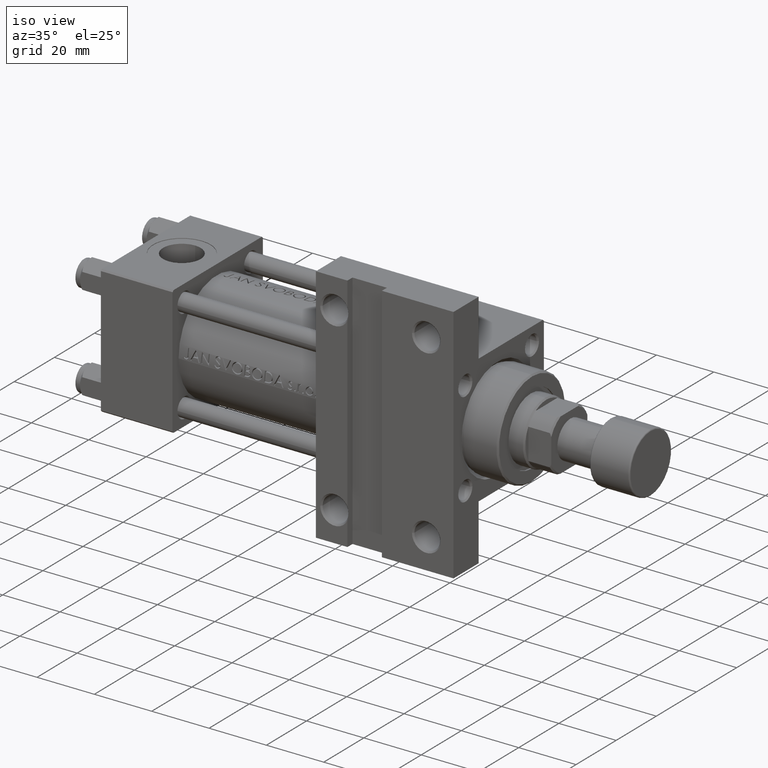
[diagram: clean part render]
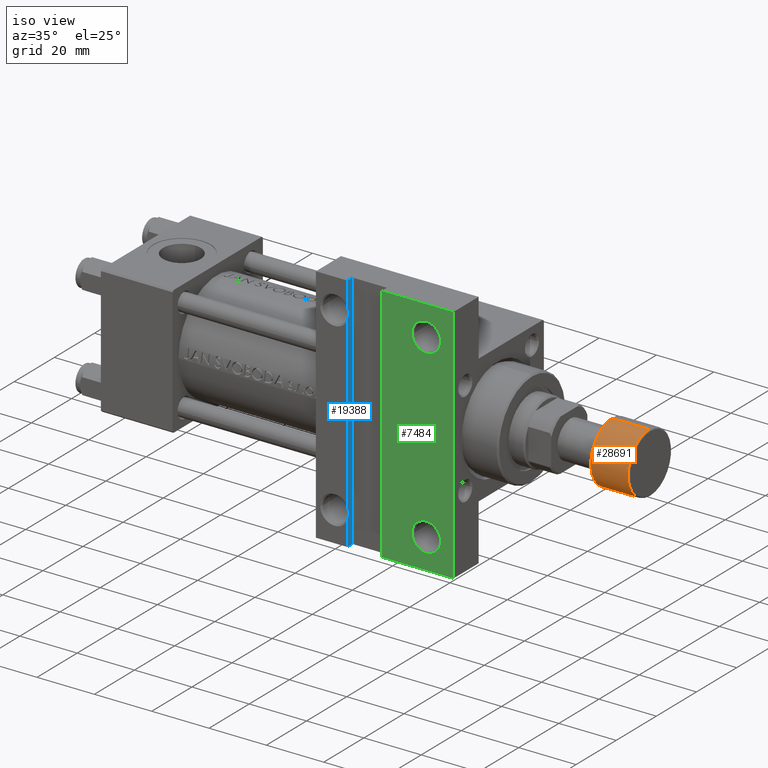
[diagram: same view with three faces highlighted in distinct colors, each labeled with its STEP entity id]
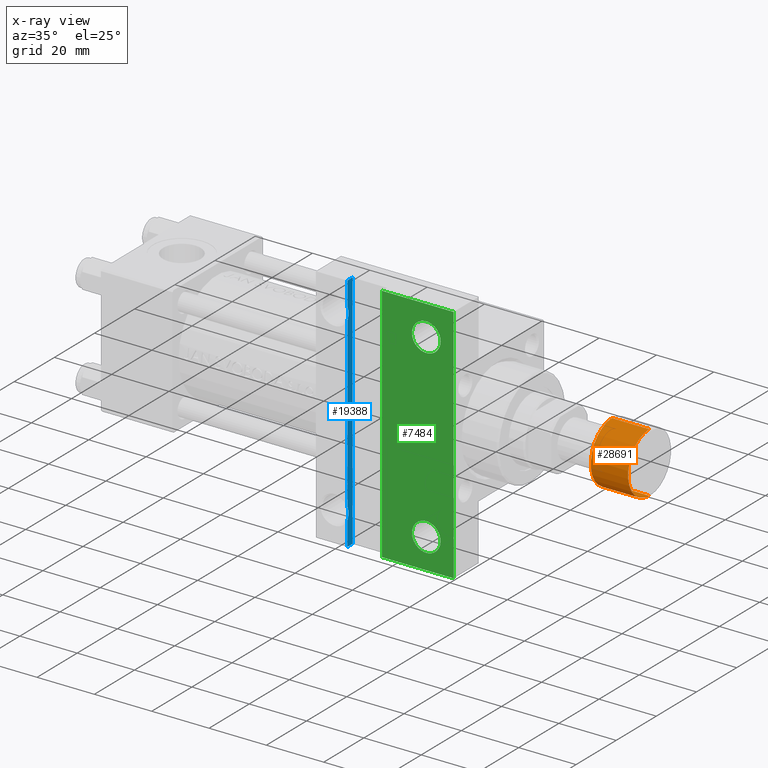
[diagram: x-ray of the same camera — body ghosted, the three highlighted faces saturated]
A machine part, iso view with three faces highlighted in distinct colors.
The next image is the same camera in x-ray (body ghosted, the three faces saturated) — at least one of them is partly hidden behind the body in this view.
Their STEP definitions:

[orange] entity #28691 — the highlighted cylindrical surface (partial cylindrical patch) has radius 10.5 mm, axis along (1, 0, 0).
#836 = CARTESIAN_POINT ( 'NONE',  ( 10.50000000000000000, 0.000000000000000000, -14.00000000000000000 ) ) ;
#5747 = VERTEX_POINT ( 'NONE', #27221 ) ;
#6845 = DIRECTION ( 'NONE',  ( 1.000000000000000000, 0.000000000000000000, 0.000000000000000000 ) ) ;
#7561 = CARTESIAN_POINT ( 'NONE',  ( -10.50000000000000000, 1.285879139104720831E-15, -14.00000000000000000 ) ) ;
#8068 = DIRECTION ( 'NONE',  ( -0.000000000000000000, -0.000000000000000000, -1.000000000000000000 ) ) ;
#8384 = LINE ( 'NONE', #836, #32066 ) ;
#8585 = AXIS2_PLACEMENT_3D ( 'NONE', #22935, #8068, #35275 ) ;
#10152 = AXIS2_PLACEMENT_3D ( 'NONE', #44390, #33548, #6845 ) ;
#14089 = VERTEX_POINT ( 'NONE', #34233 ) ;
#21527 = CARTESIAN_POINT ( 'NONE',  ( 0.000000000000000000, 0.000000000000000000, -13.50000000000000000 ) ) ;
#21781 = CIRCLE ( 'NONE', #45123, 10.50000000000000000 ) ;
#21913 = ORIENTED_EDGE ( 'NONE', *, *, #24344, .F. ) ;
#22935 = CARTESIAN_POINT ( 'NONE',  ( 0.000000000000000000, 0.000000000000000000, -0.5000000000000004441 ) ) ;
#24344 = EDGE_CURVE ( 'NONE', #5747, #47131, #34007, .T. ) ;
#25213 = ORIENTED_EDGE ( 'NONE', *, *, #32974, .T. ) ;
#25240 = CYLINDRICAL_SURFACE ( 'NONE', #10152, 10.50000000000000000 ) ;
#26510 = CARTESIAN_POINT ( 'NONE',  ( -10.50000000000000000, 1.285879139104720831E-15, -0.5000000000000004441 ) ) ;
#27221 = CARTESIAN_POINT ( 'NONE',  ( -10.50000000000000000, 1.285879139104720831E-15, -13.50000000000000000 ) ) ;
#28691 = ADVANCED_FACE ( 'NONE', ( #29029 ), #25240, .T. ) ;
#29029 = FACE_OUTER_BOUND ( 'NONE', #44233, .T. ) ;
#30095 = DIRECTION ( 'NONE',  ( 1.000000000000000000, 0.000000000000000000, 0.000000000000000000 ) ) ;
#30436 = CARTESIAN_POINT ( 'NONE',  ( 10.50000000000000000, 0.000000000000000000, -0.5000000000000004441 ) ) ;
#31750 = VECTOR ( 'NONE', #46093, 1000.000000000000000 ) ;
#32066 = VECTOR ( 'NONE', #46663, 1000.000000000000000 ) ;
#32974 = EDGE_CURVE ( 'NONE', #41137, #47131, #35936, .T. ) ;
#33548 = DIRECTION ( 'NONE',  ( 0.000000000000000000, 0.000000000000000000, 1.000000000000000000 ) ) ;
#34007 = LINE ( 'NONE', #7561, #31750 ) ;
#34233 = CARTESIAN_POINT ( 'NONE',  ( 10.50000000000000000, 0.000000000000000000, -13.50000000000000000 ) ) ;
#35275 = DIRECTION ( 'NONE',  ( 1.000000000000000000, 0.000000000000000000, 0.000000000000000000 ) ) ;
#35936 = CIRCLE ( 'NONE', #8585, 10.50000000000000000 ) ;
#37095 = EDGE_CURVE ( 'NONE', #14089, #41137, #8384, .T. ) ;
#40711 = EDGE_CURVE ( 'NONE', #5747, #14089, #21781, .T. ) ;
#41137 = VERTEX_POINT ( 'NONE', #30436 ) ;
#41177 = DIRECTION ( 'NONE',  ( 0.000000000000000000, 0.000000000000000000, 1.000000000000000000 ) ) ;
#44233 = EDGE_LOOP ( 'NONE', ( #21913, #48595, #44541, #25213 ) ) ;
#44390 = CARTESIAN_POINT ( 'NONE',  ( 0.000000000000000000, 0.000000000000000000, -14.00000000000000000 ) ) ;
#44541 = ORIENTED_EDGE ( 'NONE', *, *, #37095, .T. ) ;
#45123 = AXIS2_PLACEMENT_3D ( 'NONE', #21527, #41177, #30095 ) ;
#46093 = DIRECTION ( 'NONE',  ( 0.000000000000000000, 0.000000000000000000, 1.000000000000000000 ) ) ;
#46663 = DIRECTION ( 'NONE',  ( 0.000000000000000000, 0.000000000000000000, 1.000000000000000000 ) ) ;
#47131 = VERTEX_POINT ( 'NONE', #26510 ) ;
#48595 = ORIENTED_EDGE ( 'NONE', *, *, #40711, .T. ) ;

[blue] entity #19388 — the highlighted planar face has unit normal (-1, 0, 0).
#107 = VECTOR ( 'NONE', #47758, 1000.000000000000000 ) ;
#718 = CARTESIAN_POINT ( 'NONE',  ( 86.00000000000000000, 30.56746348183019890, -22.09273279370941623 ) ) ;
#920 = VERTEX_POINT ( 'NONE', #43365 ) ;
#2414 = DIRECTION ( 'NONE',  ( -1.000000000000000000, 0.000000000000000000, 0.000000000000000000 ) ) ;
#2891 = CARTESIAN_POINT ( 'NONE',  ( 86.00000000000000000, -31.50000000000000000, -22.00050000000004147 ) ) ;
#3299 = CARTESIAN_POINT ( 'NONE',  ( 86.00000000000000000, -42.00000000000001421, -22.50000000000000000 ) ) ;
#3533 = VECTOR ( 'NONE', #10379, 1000.000000000000000 ) ;
#3879 = VERTEX_POINT ( 'NONE', #7255 ) ;
#4743 = CARTESIAN_POINT ( 'NONE',  ( 86.00000000000000000, 30.02311897170876520, -22.22353803365223968 ) ) ;
#5211 = CARTESIAN_POINT ( 'NONE',  ( 86.00000000000000000, 33.67830214846328118, -22.50000000000000000 ) ) ;
#5234 = B_SPLINE_CURVE_WITH_KNOTS ( 'NONE', 3,
 ( #35218, #19369, #4743, #718, #20096, #31444, #31695, #27155 ),
 .UNSPECIFIED., .F., .F.,
 ( 4, 2, 2, 4 ),
 ( 0.01579153760550547000, 0.01691587669904155364, 0.01747804624580959892, 0.01804021579257764768 ),
 .UNSPECIFIED. ) ;
#5627 = EDGE_CURVE ( 'NONE', #25156, #46028, #21697, .T. ) ;
#5954 = CARTESIAN_POINT ( 'NONE',  ( 86.00000000000000000, 31.87772890306884221, -22.00050000000002726 ) ) ;
#6215 = LINE ( 'NONE', #45493, #17231 ) ;
#6628 = EDGE_CURVE ( 'NONE', #11903, #10786, #28779, .T. ) ;
#6702 = VECTOR ( 'NONE', #30758, 1000.000000000000000 ) ;
#7255 = CARTESIAN_POINT ( 'NONE',  ( 86.00000000000000000, 31.50000000000000000, -22.00050000000003791 ) ) ;
#7848 = EDGE_CURVE ( 'NONE', #920, #14769, #6215, .T. ) ;
#7872 = ORIENTED_EDGE ( 'NONE', *, *, #42980, .T. ) ;
#8399 = B_SPLINE_CURVE_WITH_KNOTS ( 'NONE', 3,
 ( #9231, #5954, #13523, #28887, #44253, #5211 ),
 .UNSPECIFIED., .F., .F.,
 ( 4, 2, 4 ),
 ( 0.01804021579257764768, 0.01916729651592626732, 0.02029437723927488696 ),
 .UNSPECIFIED. ) ;
#8423 = ORIENTED_EDGE ( 'NONE', *, *, #22895, .T. ) ;
#8799 = VECTOR ( 'NONE', #18367, 1000.000000000000000 ) ;
#8969 = VERTEX_POINT ( 'NONE', #35657 ) ;
#9231 = CARTESIAN_POINT ( 'NONE',  ( 86.00000000000000000, 31.50000000000000000, -22.00050000000003791 ) ) ;
#9574 = CARTESIAN_POINT ( 'NONE',  ( 86.00000000000000000, -42.00000000000001421, -22.50000000000000000 ) ) ;
#9724 = FACE_OUTER_BOUND ( 'NONE', #49769, .T. ) ;
#9860 = CARTESIAN_POINT ( 'NONE',  ( 86.00000000000000000, -31.87770459630471365, -22.01256252508628819 ) ) ;
#9893 = DIRECTION ( 'NONE',  ( -0.000000000000000000, -0.000000000000000000, -1.000000000000000000 ) ) ;
#9904 = EDGE_CURVE ( 'NONE', #22534, #920, #44642, .T. ) ;
#10379 = DIRECTION ( 'NONE',  ( 0.000000000000000000, 1.000000000000000000, 0.000000000000000000 ) ) ;
#10575 = CARTESIAN_POINT ( 'NONE',  ( 86.00000000000000000, -31.12227109693115068, -22.00050000000003436 ) ) ;
#10786 = VERTEX_POINT ( 'NONE', #43092 ) ;
#11576 = CARTESIAN_POINT ( 'NONE',  ( 86.00000000000000000, -29.66403030664333329, -22.35084437994841622 ) ) ;
#11903 = VERTEX_POINT ( 'NONE', #9574 ) ;
#12135 = ORIENTED_EDGE ( 'NONE', *, *, #7848, .T. ) ;
#12345 = VERTEX_POINT ( 'NONE', #32324 ) ;
#13523 = CARTESIAN_POINT ( 'NONE',  ( 86.00000000000000000, 32.24813495350922921, -22.04852933435978812 ) ) ;
#14675 = LINE ( 'NONE', #37091, #42929 ) ;
#14769 = VERTEX_POINT ( 'NONE', #37387 ) ;
#14855 = CARTESIAN_POINT ( 'NONE',  ( 85.99999999999998579, -30.02307536041444180, -22.22344095967225641 ) ) ;
#15822 = ORIENTED_EDGE ( 'NONE', *, *, #6628, .T. ) ;
#16686 = CARTESIAN_POINT ( 'NONE',  ( 86.00000000000000000, -31.68840503775852824, -22.00050000000002726 ) ) ;
#16883 = EDGE_CURVE ( 'NONE', #3879, #25156, #8399, .T. ) ;
#16930 = CARTESIAN_POINT ( 'NONE',  ( 85.99999999999998579, -32.97688102829120282, -22.22353803365224323 ) ) ;
#17231 = VECTOR ( 'NONE', #30392, 1000.000000000000000 ) ;
#17904 = EDGE_CURVE ( 'NONE', #8969, #46028, #21818, .T. ) ;
#18367 = DIRECTION ( 'NONE',  ( 0.000000000000000000, 1.000000000000000000, 0.000000000000000000 ) ) ;
#19369 = CARTESIAN_POINT ( 'NONE',  ( 86.00000000000000000, 29.66582197534681242, -22.35006374272757057 ) ) ;
#19388 = ADVANCED_FACE ( 'NONE', ( #9724 ), #29380, .F. ) ;
#20096 = CARTESIAN_POINT ( 'NONE',  ( 86.00000000000000000, 30.75089400855858202, -22.05870219545291633 ) ) ;
#20459 = CARTESIAN_POINT ( 'NONE',  ( 86.00000000000000000, -32.43253651816978333, -22.09273279370942333 ) ) ;
#21575 = CARTESIAN_POINT ( 'NONE',  ( 86.00000000000000000, 42.00000000000000711, -20.00000000000000000 ) ) ;
#21697 = LINE ( 'NONE', #3299, #6702 ) ;
#21818 = LINE ( 'NONE', #21575, #107 ) ;
#22534 = VERTEX_POINT ( 'NONE', #2891 ) ;
#22895 = EDGE_CURVE ( 'NONE', #12345, #11903, #14675, .T. ) ;
#23806 = ORIENTED_EDGE ( 'NONE', *, *, #9904, .T. ) ;
#25156 = VERTEX_POINT ( 'NONE', #36900 ) ;
#27155 = CARTESIAN_POINT ( 'NONE',  ( 86.00000000000000000, 31.50000000000000000, -22.00050000000003791 ) ) ;
#28779 = LINE ( 'NONE', #29276, #3533 ) ;
#28887 = CARTESIAN_POINT ( 'NONE',  ( 85.99999999999998579, 32.97692463958557596, -22.22344095967225286 ) ) ;
#29165 = AXIS2_PLACEMENT_3D ( 'NONE', #33395, #2414, #36672 ) ;
#29276 = CARTESIAN_POINT ( 'NONE',  ( 86.00000000000000000, -42.00000000000001421, -22.50000000000000000 ) ) ;
#29380 = PLANE ( 'NONE',  #29165 ) ;
#30392 = DIRECTION ( 'NONE',  ( 0.000000000000000000, 1.000000000000000000, 0.000000000000000000 ) ) ;
#30472 = CARTESIAN_POINT ( 'NONE',  ( 86.00000000000000000, -29.32169785153675790, -22.50000000000000000 ) ) ;
#30758 = DIRECTION ( 'NONE',  ( 0.000000000000000000, 1.000000000000000000, 0.000000000000000000 ) ) ;
#31444 = CARTESIAN_POINT ( 'NONE',  ( 86.00000000000000000, 31.12229540369527214, -22.01256252508629174 ) ) ;
#31695 = CARTESIAN_POINT ( 'NONE',  ( 86.00000000000001421, 31.31159496224147176, -22.00050000000002726 ) ) ;
#32056 = CARTESIAN_POINT ( 'NONE',  ( 86.00000000000000000, -33.67830214846323855, -22.50000000000000000 ) ) ;
#32324 = CARTESIAN_POINT ( 'NONE',  ( 86.00000000000000000, -42.00000000000001421, -20.00000000000000000 ) ) ;
#32668 = ORIENTED_EDGE ( 'NONE', *, *, #17904, .F. ) ;
#33078 = ORIENTED_EDGE ( 'NONE', *, *, #5627, .T. ) ;
#33395 = CARTESIAN_POINT ( 'NONE',  ( 86.00000000000000000, -42.00000000000001421, -20.00000000000000000 ) ) ;
#33794 = ORIENTED_EDGE ( 'NONE', *, *, #39451, .F. ) ;
#34290 = CARTESIAN_POINT ( 'NONE',  ( 86.00000000000000000, 42.00000000000000711, -22.50000000000000000 ) ) ;
#35112 = B_SPLINE_CURVE_WITH_KNOTS ( 'NONE', 3,
 ( #32056, #43637, #16930, #20459, #36814, #9860, #16686, #47875 ),
 .UNSPECIFIED., .F., .F.,
 ( 4, 2, 2, 4 ),
 ( 0.01579153760550526184, 0.01691587669904132812, 0.01747804624580936300, 0.01804021579257739788 ),
 .UNSPECIFIED. ) ;
#35218 = CARTESIAN_POINT ( 'NONE',  ( 86.00000000000000000, 29.32169785153671526, -22.50000000000000000 ) ) ;
#35657 = CARTESIAN_POINT ( 'NONE',  ( 86.00000000000000000, 42.00000000000000711, -20.00000000000000000 ) ) ;
#36672 = DIRECTION ( 'NONE',  ( 0.000000000000000000, 0.000000000000000000, 1.000000000000000000 ) ) ;
#36814 = CARTESIAN_POINT ( 'NONE',  ( 86.00000000000000000, -32.24910599144141088, -22.05870219545291633 ) ) ;
#36900 = CARTESIAN_POINT ( 'NONE',  ( 86.00000000000000000, 33.67830214846328118, -22.50000000000000000 ) ) ;
#37091 = CARTESIAN_POINT ( 'NONE',  ( 86.00000000000000000, -42.00000000000001421, -20.00000000000000000 ) ) ;
#37387 = CARTESIAN_POINT ( 'NONE',  ( 86.00000000000000000, 29.32169785153671526, -22.50000000000000000 ) ) ;
#37420 = ORIENTED_EDGE ( 'NONE', *, *, #45034, .T. ) ;
#37488 = CARTESIAN_POINT ( 'NONE',  ( 86.00000000000000000, -42.00000000000001421, -20.00000000000000000 ) ) ;
#39451 = EDGE_CURVE ( 'NONE', #12345, #8969, #48805, .T. ) ;
#41300 = CARTESIAN_POINT ( 'NONE',  ( 86.00000000000000000, -30.75186504649079566, -22.04852933435978812 ) ) ;
#42929 = VECTOR ( 'NONE', #9893, 1000.000000000000000 ) ;
#42980 = EDGE_CURVE ( 'NONE', #14769, #3879, #5234, .T. ) ;
#43092 = CARTESIAN_POINT ( 'NONE',  ( 86.00000000000000000, -33.67830214846323855, -22.50000000000000000 ) ) ;
#43365 = CARTESIAN_POINT ( 'NONE',  ( 86.00000000000000000, -29.32169785153675790, -22.50000000000000000 ) ) ;
#43637 = CARTESIAN_POINT ( 'NONE',  ( 85.99999999999998579, -33.33417802465316271, -22.35006374272755991 ) ) ;
#44253 = CARTESIAN_POINT ( 'NONE',  ( 86.00000000000000000, 33.33596969335671645, -22.35084437994841977 ) ) ;
#44642 = B_SPLINE_CURVE_WITH_KNOTS ( 'NONE', 3,
 ( #46075, #10575, #41300, #14855, #11576, #30472 ),
 .UNSPECIFIED., .F., .F.,
 ( 4, 2, 4 ),
 ( 0.01804021579257739788, 0.01916729651592598976, 0.02029437723927458165 ),
 .UNSPECIFIED. ) ;
#45034 = EDGE_CURVE ( 'NONE', #10786, #22534, #35112, .T. ) ;
#45493 = CARTESIAN_POINT ( 'NONE',  ( 86.00000000000000000, -42.00000000000001421, -22.50000000000000000 ) ) ;
#46028 = VERTEX_POINT ( 'NONE', #34290 ) ;
#46075 = CARTESIAN_POINT ( 'NONE',  ( 86.00000000000000000, -31.50000000000000000, -22.00050000000004147 ) ) ;
#47758 = DIRECTION ( 'NONE',  ( -0.000000000000000000, -0.000000000000000000, -1.000000000000000000 ) ) ;
#47875 = CARTESIAN_POINT ( 'NONE',  ( 86.00000000000000000, -31.50000000000000000, -22.00050000000004147 ) ) ;
#48631 = ORIENTED_EDGE ( 'NONE', *, *, #16883, .T. ) ;
#48805 = LINE ( 'NONE', #37488, #8799 ) ;
#49769 = EDGE_LOOP ( 'NONE', ( #7872, #48631, #33078, #32668, #33794, #8423, #15822, #37420, #23806, #12135 ) ) ;

[green] entity #7484 — the highlighted planar face has unit normal (0, -1, -0).
#2826 = EDGE_CURVE ( 'NONE', #20883, #39755, #13637, .T. ) ;
#2849 = PLANE ( 'NONE',  #7607 ) ;
#2890 = EDGE_CURVE ( 'NONE', #38140, #17926, #15490, .T. ) ;
#3272 = LINE ( 'NONE', #15622, #24440 ) ;
#5630 = ORIENTED_EDGE ( 'NONE', *, *, #31207, .T. ) ;
#5735 = EDGE_LOOP ( 'NONE', ( #19039, #9863, #40775, #43434 ) ) ;
#7484 = ADVANCED_FACE ( 'NONE', ( #30810, #38096, #49668 ), #2849, .T. ) ;
#7607 = AXIS2_PLACEMENT_3D ( 'NONE', #45419, #26023, #33580 ) ;
#8274 = CARTESIAN_POINT ( 'NONE',  ( 113.5000000000000142, 31.50000000000000000, -22.49999999999999645 ) ) ;
#8474 = CIRCLE ( 'NONE', #47850, 4.999499999999962085 ) ;
#9838 = DIRECTION ( 'NONE',  ( 0.000000000000000000, -1.000000000000000000, -7.709882115452476934E-17 ) ) ;
#9863 = ORIENTED_EDGE ( 'NONE', *, *, #32760, .T. ) ;
#10091 = DIRECTION ( 'NONE',  ( 0.000000000000000000, 1.000000000000000000, 0.000000000000000000 ) ) ;
#10586 = VERTEX_POINT ( 'NONE', #32128 ) ;
#10853 = CARTESIAN_POINT ( 'NONE',  ( 75.00000000000000000, -42.00000000000000711, -22.50000000000000000 ) ) ;
#10917 = AXIS2_PLACEMENT_3D ( 'NONE', #34614, #42427, #18511 ) ;
#13395 = CARTESIAN_POINT ( 'NONE',  ( 75.00000000000001421, 42.00000000000000711, -22.50000000000000000 ) ) ;
#13637 = LINE ( 'NONE', #36791, #24319 ) ;
#14406 = CARTESIAN_POINT ( 'NONE',  ( 123.0000000000000000, 41.99999999999999289, -22.50000000000000000 ) ) ;
#14495 = EDGE_LOOP ( 'NONE', ( #24571, #41779 ) ) ;
#15239 = DIRECTION ( 'NONE',  ( 0.000000000000000000, 1.000000000000000000, 0.000000000000000000 ) ) ;
#15481 = CARTESIAN_POINT ( 'NONE',  ( 113.5000000000000142, 31.50000000000000000, -22.49999999999999645 ) ) ;
#15490 = CIRCLE ( 'NONE', #44416, 4.999499999999948763 ) ;
#15622 = CARTESIAN_POINT ( 'NONE',  ( 98.00000000000000000, -42.00000000000001421, -22.50000000000000000 ) ) ;
#15967 = CARTESIAN_POINT ( 'NONE',  ( 108.5005000000000734, -31.50000000000000000, -22.50000000000000000 ) ) ;
#17926 = VERTEX_POINT ( 'NONE', #40729 ) ;
#18511 = DIRECTION ( 'NONE',  ( 0.000000000000000000, 1.000000000000000000, 0.000000000000000000 ) ) ;
#18802 = CARTESIAN_POINT ( 'NONE',  ( 122.9999999999999858, -42.00000000000000711, -22.50000000000000000 ) ) ;
#19027 = VECTOR ( 'NONE', #20699, 1000.000000000000000 ) ;
#19039 = ORIENTED_EDGE ( 'NONE', *, *, #23457, .F. ) ;
#19641 = DIRECTION ( 'NONE',  ( -0.000000000000000000, -1.000000000000000000, -0.000000000000000000 ) ) ;
#20375 = CIRCLE ( 'NONE', #34043, 4.999499999999962085 ) ;
#20699 = DIRECTION ( 'NONE',  ( 1.000000000000000000, -2.891205793294679312E-16, 0.000000000000000000 ) ) ;
#20883 = VERTEX_POINT ( 'NONE', #14406 ) ;
#21747 = EDGE_CURVE ( 'NONE', #10586, #45782, #20375, .T. ) ;
#23378 = DIRECTION ( 'NONE',  ( -0.000000000000000000, -7.709882115452476934E-17, 1.000000000000000000 ) ) ;
#23457 = EDGE_CURVE ( 'NONE', #26261, #25866, #3272, .T. ) ;
#24319 = VECTOR ( 'NONE', #9838, 1000.000000000000000 ) ;
#24440 = VECTOR ( 'NONE', #19641, 1000.000000000000000 ) ;
#24571 = ORIENTED_EDGE ( 'NONE', *, *, #21747, .T. ) ;
#25866 = VERTEX_POINT ( 'NONE', #44531 ) ;
#26023 = DIRECTION ( 'NONE',  ( 0.000000000000000000, 7.709882115452476934E-17, -1.000000000000000000 ) ) ;
#26261 = VERTEX_POINT ( 'NONE', #27998 ) ;
#27766 = LINE ( 'NONE', #13395, #19027 ) ;
#27998 = CARTESIAN_POINT ( 'NONE',  ( 98.00000000000000000, 42.00000000000000711, -22.50000000000000000 ) ) ;
#29759 = LINE ( 'NONE', #10853, #45505 ) ;
#30810 = FACE_OUTER_BOUND ( 'NONE', #5735, .T. ) ;
#31207 = EDGE_CURVE ( 'NONE', #17926, #38140, #47886, .T. ) ;
#32128 = CARTESIAN_POINT ( 'NONE',  ( 108.5005000000000592, 31.50000000000000000, -22.49999999999999645 ) ) ;
#32760 = EDGE_CURVE ( 'NONE', #26261, #20883, #27766, .T. ) ;
#33580 = DIRECTION ( 'NONE',  ( 0.000000000000000000, 1.000000000000000000, 7.709882115452476934E-17 ) ) ;
#34043 = AXIS2_PLACEMENT_3D ( 'NONE', #15481, #34369, #15239 ) ;
#34369 = DIRECTION ( 'NONE',  ( -0.000000000000000000, -7.709882115452476934E-17, 1.000000000000000000 ) ) ;
#34614 = CARTESIAN_POINT ( 'NONE',  ( 113.5000000000000142, -31.50000000000000000, -22.50000000000000000 ) ) ;
#36791 = CARTESIAN_POINT ( 'NONE',  ( 123.0000000000000142, 22.50000000000000355, -22.49999999999999645 ) ) ;
#37770 = DIRECTION ( 'NONE',  ( -0.000000000000000000, -7.709882115452476934E-17, 1.000000000000000000 ) ) ;
#38096 = FACE_BOUND ( 'NONE', #14495, .T. ) ;
#38140 = VERTEX_POINT ( 'NONE', #15967 ) ;
#38739 = DIRECTION ( 'NONE',  ( 0.000000000000000000, 1.000000000000000000, 0.000000000000000000 ) ) ;
#39755 = VERTEX_POINT ( 'NONE', #18802 ) ;
#40729 = CARTESIAN_POINT ( 'NONE',  ( 118.4994999999999692, -31.50000000000000000, -22.50000000000000000 ) ) ;
#40775 = ORIENTED_EDGE ( 'NONE', *, *, #2826, .T. ) ;
#41579 = DIRECTION ( 'NONE',  ( -1.000000000000000000, -0.000000000000000000, -0.000000000000000000 ) ) ;
#41779 = ORIENTED_EDGE ( 'NONE', *, *, #46499, .T. ) ;
#42427 = DIRECTION ( 'NONE',  ( -0.000000000000000000, -7.709882115452476934E-17, 1.000000000000000000 ) ) ;
#43434 = ORIENTED_EDGE ( 'NONE', *, *, #47453, .T. ) ;
#43810 = EDGE_LOOP ( 'NONE', ( #45941, #5630 ) ) ;
#44416 = AXIS2_PLACEMENT_3D ( 'NONE', #45095, #37770, #10091 ) ;
#44531 = CARTESIAN_POINT ( 'NONE',  ( 98.00000000000000000, -42.00000000000001421, -22.50000000000000000 ) ) ;
#45095 = CARTESIAN_POINT ( 'NONE',  ( 113.5000000000000142, -31.50000000000000000, -22.50000000000000000 ) ) ;
#45419 = CARTESIAN_POINT ( 'NONE',  ( 123.0000000000000142, 22.50000000000000355, -22.49999999999999645 ) ) ;
#45505 = VECTOR ( 'NONE', #41579, 1000.000000000000000 ) ;
#45782 = VERTEX_POINT ( 'NONE', #46170 ) ;
#45941 = ORIENTED_EDGE ( 'NONE', *, *, #2890, .T. ) ;
#46170 = CARTESIAN_POINT ( 'NONE',  ( 118.4994999999999834, 31.50000000000000000, -22.49999999999999645 ) ) ;
#46499 = EDGE_CURVE ( 'NONE', #45782, #10586, #8474, .T. ) ;
#47453 = EDGE_CURVE ( 'NONE', #39755, #25866, #29759, .T. ) ;
#47850 = AXIS2_PLACEMENT_3D ( 'NONE', #8274, #23378, #38739 ) ;
#47886 = CIRCLE ( 'NONE', #10917, 4.999499999999948763 ) ;
#49668 = FACE_BOUND ( 'NONE', #43810, .T. ) ;